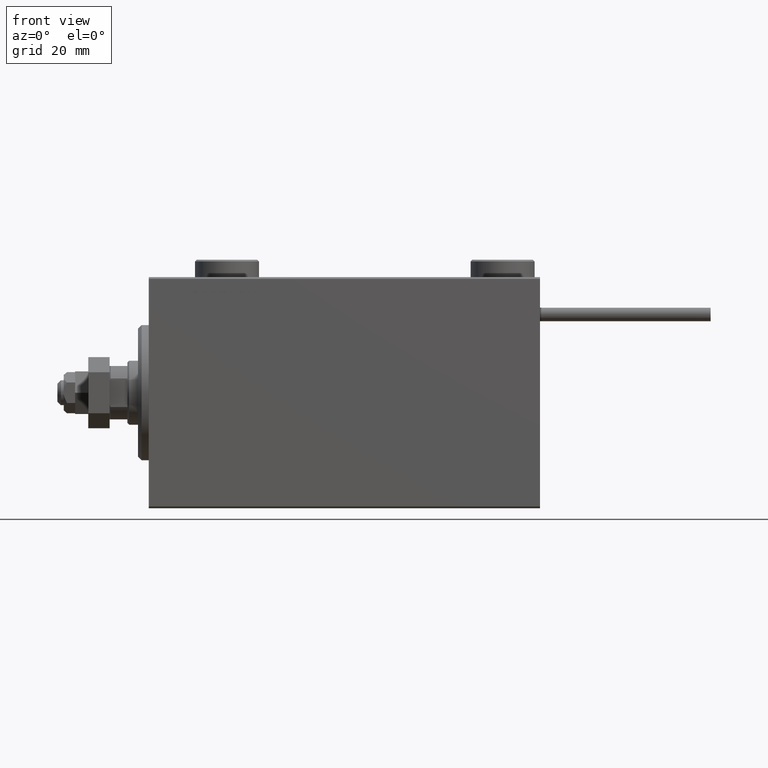
[diagram: clean part render]
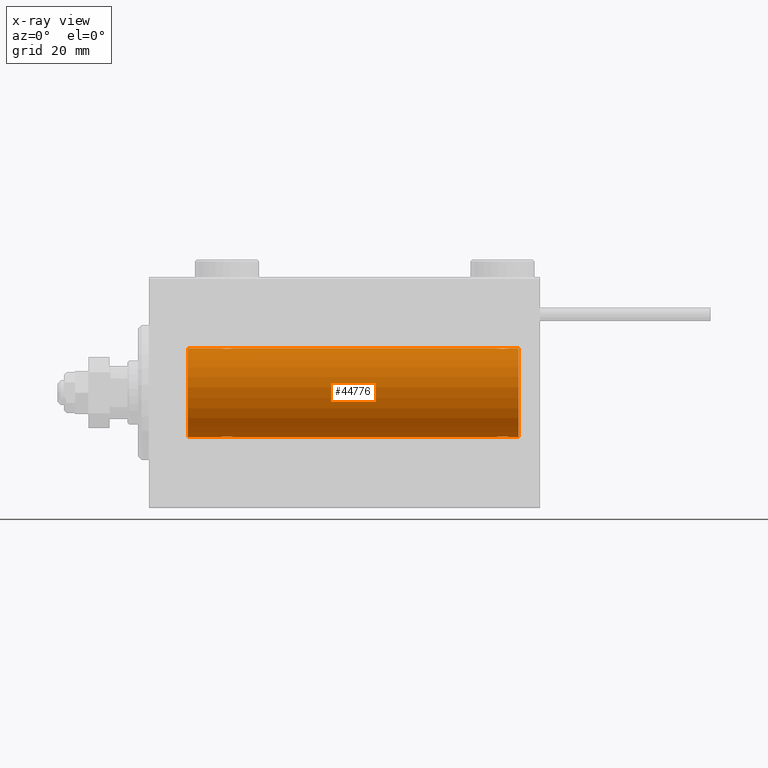
[diagram: x-ray — body ghosted, one internal face saturated and labeled with its STEP entity id]
A machine part, front view, then the same camera in x-ray: the body is ghosted and one INTERNAL B-rep face — a face not visible from any outside direction — is saturated and labeled: STEP entity #44776.
In plain terms, the highlighted cylindrical surface (partial cylindrical patch) has radius 12.5 mm, axis along (-1, -0, -0).
Its self-contained STEP definition (entity closure, byte-faithful):
#243 = CARTESIAN_POINT ( 'NONE',  ( 22.88874725797039389, -1.796480516834687569, -12.37033750336835070 ) ) ;
#321 = CARTESIAN_POINT ( 'NONE',  ( 97.55334320101623291, -0.5275951738695811022, -12.49118442338578738 ) ) ;
#847 = CARTESIAN_POINT ( 'NONE',  ( 101.4474434057233196, -0.5247436444070316952, -12.49130933415156974 ) ) ;
#2252 = CARTESIAN_POINT ( 'NONE',  ( 19.99999999999999645, -7.265724481447607133E-23, 12.50000000000000000 ) ) ;
#2272 = CARTESIAN_POINT ( 'NONE',  ( 98.85356103036407660, -1.897190184049181161, 12.35529285772521213 ) ) ;
#2606 = DIRECTION ( 'NONE',  ( -1.000000000000000000, -0.000000000000000000, -0.000000000000000000 ) ) ;
#3321 = CARTESIAN_POINT ( 'NONE',  ( 101.0974477469102197, -1.231226695485355904, 12.44059298055988094 ) ) ;
#3878 = B_SPLINE_CURVE_WITH_KNOTS ( 'NONE', 3,
 ( #25034, #36732, #847, #15999, #45224, #33020, #28224, #29285, #28758, #36192, #4822, #40704, #21053, #44435, #52406, #16803, #48957, #45481, #20795, #37252, #24231, #49488, #28489, #32755, #8028, #321, #40446, #41239 ),
 .UNSPECIFIED., .F., .F.,
 ( 4, 2, 2, 2, 2, 2, 2, 2, 2, 2, 2, 2, 2, 4 ),
 ( 0.006262980370572163689, 0.007045658964677352538, 0.007436998261729955637, 0.007828337558782557867, 0.008219676855835160098, 0.008611016152887764064, 0.009002355449940366294, 0.009393694746992968525, 0.009785034044045572491, 0.01017637334109817472, 0.01056771263815077869, 0.01095905193520338092, 0.01174173052930858538, 0.01252440912341379158 ),
 .UNSPECIFIED. ) ;
#3954 = CARTESIAN_POINT ( 'NONE',  ( 20.00000000000000000, -0.2646816682749824068, -12.50000000000000355 ) ) ;
#4373 = CARTESIAN_POINT ( 'NONE',  ( 99.63089967323423934, -2.000082296475560906, 12.33894933996983490 ) ) ;
#4822 = CARTESIAN_POINT ( 'NONE',  ( 100.3887472579704365, -1.796480516834683128, -12.37033750336835602 ) ) ;
#4859 = VECTOR ( 'NONE', #38049, 1000.000000000000000 ) ;
#5201 = CARTESIAN_POINT ( 'NONE',  ( 20.05255659427669812, -0.5247436444070346928, 12.49130933415156619 ) ) ;
#5263 = CIRCLE ( 'NONE', #34098, 12.50000000000000000 ) ;
#5459 = CARTESIAN_POINT ( 'NONE',  ( 20.20214393531741948, -0.8858253204748031129, 12.46915613403961132 ) ) ;
#5545 = DIRECTION ( 'NONE',  ( 0.000000000000000000, 0.000000000000000000, 1.000000000000000000 ) ) ;
#5712 = CARTESIAN_POINT ( 'NONE',  ( 22.88616153879433313, -1.797736511708062146, 12.37015393445320655 ) ) ;
#6257 = CARTESIAN_POINT ( 'NONE',  ( 97.50000000000000000, -7.266434456262306043E-23, 12.50000000000000000 ) ) ;
#6728 = ORIENTED_EDGE ( 'NONE', *, *, #25070, .T. ) ;
#7044 = CARTESIAN_POINT ( 'NONE',  ( 104.0000000000000000, 0.000000000000000000, 12.50000000000000000 ) ) ;
#7442 = DIRECTION ( 'NONE',  ( -1.000000000000000000, -0.000000000000000000, -0.000000000000000000 ) ) ;
#7759 = DIRECTION ( 'NONE',  ( -1.000000000000000000, 0.000000000000000000, 0.000000000000000000 ) ) ;
#7952 = CARTESIAN_POINT ( 'NONE',  ( 19.99999999999999645, -3.210500737764230410E-15, -12.50000000000000000 ) ) ;
#8020 = LINE ( 'NONE', #7044, #21596 ) ;
#8028 = CARTESIAN_POINT ( 'NONE',  ( 97.75337863379108683, -1.008535157355855194, -12.46157701909767823 ) ) ;
#8109 = CARTESIAN_POINT ( 'NONE',  ( 99.36659749548705634, -1.999916920503812534, 12.33897614545467647 ) ) ;
#8377 = CARTESIAN_POINT ( 'NONE',  ( 100.0169372669762708, -1.936441098420705220, 12.34912369794528786 ) ) ;
#8384 = VERTEX_POINT ( 'NONE', #23718 ) ;
#8647 = CARTESIAN_POINT ( 'NONE',  ( 101.5000000000000000, 3.163483401492493339E-15, 12.50000000000000000 ) ) ;
#8870 = CARTESIAN_POINT ( 'NONE',  ( 104.0000000000000000, 0.000000000000000000, 12.50000000000000000 ) ) ;
#10015 = CARTESIAN_POINT ( 'NONE',  ( 10.99999999999999645, 0.000000000000000000, 12.50000000000000000 ) ) ;
#10140 = LINE ( 'NONE', #49513, #4859 ) ;
#10228 = EDGE_CURVE ( 'NONE', #25231, #48870, #35056, .T. ) ;
#11623 = VERTEX_POINT ( 'NONE', #44058 ) ;
#11671 = CARTESIAN_POINT ( 'NONE',  ( 20.25337863379106551, -1.008535157355840761, -12.46157701909767646 ) ) ;
#11928 = CARTESIAN_POINT ( 'NONE',  ( 21.35574721202270254, -1.897913903092047327, -12.35518060345725289 ) ) ;
#11960 = AXIS2_PLACEMENT_3D ( 'NONE', #20519, #7759, #27682 ) ;
#12467 = CARTESIAN_POINT ( 'NONE',  ( 23.79785606468258052, -0.8858253204748001153, -12.46915613403960954 ) ) ;
#12508 = EDGE_CURVE ( 'NONE', #22998, #16297, #10140, .T. ) ;
#12551 = ORIENTED_EDGE ( 'NONE', *, *, #10228, .T. ) ;
#12988 = ORIENTED_EDGE ( 'NONE', *, *, #16783, .F. ) ;
#13276 = FACE_OUTER_BOUND ( 'NONE', #48286, .T. ) ;
#13325 = CARTESIAN_POINT ( 'NONE',  ( 97.50000000000000000, -1.163384304276021718E-14, -12.50000000000000000 ) ) ;
#13439 = CARTESIAN_POINT ( 'NONE',  ( 21.48038527642126638, -1.935716533151644381, 12.34923763528285079 ) ) ;
#13654 = VERTEX_POINT ( 'NONE', #30361 ) ;
#13698 = CARTESIAN_POINT ( 'NONE',  ( 22.13089967323422869, -2.000082296475567567, 12.33894933996982957 ) ) ;
#13836 = DIRECTION ( 'NONE',  ( -1.000000000000000000, 0.000000000000000000, 0.000000000000000000 ) ) ;
#13956 = CARTESIAN_POINT ( 'NONE',  ( 23.94665679898380972, -0.5275951738695614512, 12.49118442338578738 ) ) ;
#14213 = CARTESIAN_POINT ( 'NONE',  ( 20.77972850102579727, -1.589951752150277509, 12.39868561261689273 ) ) ;
#14234 = CARTESIAN_POINT ( 'NONE',  ( 97.49999999999995737, -0.2612140938986747818, 12.50000000000000000 ) ) ;
#15034 = CARTESIAN_POINT ( 'NONE',  ( 98.27972850102580082, -1.589951752150278397, 12.39868561261688740 ) ) ;
#15626 = EDGE_CURVE ( 'NONE', #13654, #8384, #50320, .T. ) ;
#15920 = CARTESIAN_POINT ( 'NONE',  ( 23.58981090228289546, -1.220538259806346559, -12.44075068685997287 ) ) ;
#15982 = EDGE_CURVE ( 'NONE', #37636, #8384, #16207, .T. ) ;
#15999 = CARTESIAN_POINT ( 'NONE',  ( 101.2978560646825770, -0.8858253204747995602, -12.46915613403961132 ) ) ;
#16207 = LINE ( 'NONE', #24429, #24428 ) ;
#16297 = VERTEX_POINT ( 'NONE', #43516 ) ;
#16466 = CARTESIAN_POINT ( 'NONE',  ( 24.00000000000000000, 1.530808426277417854E-15, -12.50000000000000000 ) ) ;
#16618 = CARTESIAN_POINT ( 'NONE',  ( 101.5000000000000000, -0.2646816682749794647, 12.50000000000000000 ) ) ;
#16783 = EDGE_CURVE ( 'NONE', #13654, #48169, #45769, .T. ) ;
#16787 = ORIENTED_EDGE ( 'NONE', *, *, #50962, .F. ) ;
#16803 = CARTESIAN_POINT ( 'NONE',  ( 99.36910032676577487, -2.000082296475571120, -12.33894933996983134 ) ) ;
#17663 = EDGE_CURVE ( 'NONE', #11623, #30540, #34607, .T. ) ;
#17666 = CARTESIAN_POINT ( 'NONE',  ( 24.00000000000000000, 1.530808426277417854E-15, -12.50000000000000000 ) ) ;
#17951 = CARTESIAN_POINT ( 'NONE',  ( 23.32116712851443552, -1.507135374967696784, 12.40915432986586708 ) ) ;
#18294 = CYLINDRICAL_SURFACE ( 'NONE', #28284, 12.50000000000000000 ) ;
#18477 = CARTESIAN_POINT ( 'NONE',  ( 23.21854119541938388, -1.591305132013877133, 12.39851226212236313 ) ) ;
#19328 = ORIENTED_EDGE ( 'NONE', *, *, #15982, .F. ) ;
#19547 = CARTESIAN_POINT ( 'NONE',  ( 98.98038527642125928, -1.935716533151639718, 12.34923763528284368 ) ) ;
#19909 = CARTESIAN_POINT ( 'NONE',  ( 22.26391373102435622, -1.986793270638195663, -12.34112317291864791 ) ) ;
#20519 = CARTESIAN_POINT ( 'NONE',  ( 104.0000000000000000, 0.000000000000000000, 0.000000000000000000 ) ) ;
#20650 = VERTEX_POINT ( 'NONE', #43088 ) ;
#20795 = CARTESIAN_POINT ( 'NONE',  ( 98.85574721202273452, -1.897913903092053545, -12.35518060345725466 ) ) ;
#21053 = CARTESIAN_POINT ( 'NONE',  ( 100.0196147235787407, -1.935716533151644381, -12.34923763528284901 ) ) ;
#21429 = CARTESIAN_POINT ( 'NONE',  ( 21.35356103036408371, -1.897190184049189821, 12.35529285772521568 ) ) ;
#21596 = VECTOR ( 'NONE', #23250, 1000.000000000000000 ) ;
#21680 = CARTESIAN_POINT ( 'NONE',  ( 21.73608626897565088, -1.986793270638199438, 12.34112317291865146 ) ) ;
#21938 = CARTESIAN_POINT ( 'NONE',  ( 23.59744774691022684, -1.231226695485365230, 12.44059298055988450 ) ) ;
#22193 = CARTESIAN_POINT ( 'NONE',  ( 23.00099792098508900, -1.736403706023271099, 12.37902502246767966 ) ) ;
#22479 = CARTESIAN_POINT ( 'NONE',  ( 97.99277848532007340, -1.321088093821075393, 12.43033959299025426 ) ) ;
#22998 = VERTEX_POINT ( 'NONE', #35661 ) ;
#23250 = DIRECTION ( 'NONE',  ( -1.000000000000000000, -0.000000000000000000, -0.000000000000000000 ) ) ;
#23276 = CARTESIAN_POINT ( 'NONE',  ( 97.91018909771709389, -1.220538259806350778, 12.44075068685996754 ) ) ;
#23369 = CARTESIAN_POINT ( 'NONE',  ( 22.51961472357874072, -1.935716533151642160, -12.34923763528285257 ) ) ;
#23627 = CARTESIAN_POINT ( 'NONE',  ( 24.00000000000000711, -0.2612140938986741157, -12.50000000000000533 ) ) ;
#23718 = CARTESIAN_POINT ( 'NONE',  ( 24.00000000000000000, 4.282144263989374341E-15, 12.50000000000000000 ) ) ;
#23787 = CARTESIAN_POINT ( 'NONE',  ( 99.23608626897566864, -1.986793270638193443, 12.34112317291865146 ) ) ;
#24231 = CARTESIAN_POINT ( 'NONE',  ( 98.49900207901492877, -1.736403706023275095, -12.37902502246767789 ) ) ;
#24313 = CARTESIAN_POINT ( 'NONE',  ( 101.2466213662089274, -1.008535157355832990, 12.46157701909767823 ) ) ;
#24363 = ORIENTED_EDGE ( 'NONE', *, *, #12508, .T. ) ;
#24418 = CARTESIAN_POINT ( 'NONE',  ( 21.86910032676576421, -2.000082296475566679, -12.33894933996983490 ) ) ;
#24428 = VECTOR ( 'NONE', #7442, 1000.000000000000000 ) ;
#24429 = CARTESIAN_POINT ( 'NONE',  ( 104.0000000000000000, 0.000000000000000000, 12.50000000000000000 ) ) ;
#24580 = CARTESIAN_POINT ( 'NONE',  ( 100.5009979209850854, -1.736403706023266658, 12.37902502246767789 ) ) ;
#24916 = CARTESIAN_POINT ( 'NONE',  ( 10.99999999999999645, 1.530808498934191127E-15, -12.50000000000000000 ) ) ;
#25034 = CARTESIAN_POINT ( 'NONE',  ( 101.5000000000000000, 1.530808426269529245E-15, -12.50000000000000000 ) ) ;
#25067 = DIRECTION ( 'NONE',  ( -1.000000000000000000, -0.000000000000000000, -0.000000000000000000 ) ) ;
#25070 = EDGE_CURVE ( 'NONE', #16297, #25231, #3878, .T. ) ;
#25182 = EDGE_CURVE ( 'NONE', #30540, #48169, #5263, .T. ) ;
#25231 = VERTEX_POINT ( 'NONE', #13325 ) ;
#25918 = CARTESIAN_POINT ( 'NONE',  ( 22.51693726697628506, -1.936441098420708773, 12.34912369794529141 ) ) ;
#26176 = CARTESIAN_POINT ( 'NONE',  ( 20.41018909771710810, -1.220538259806349890, 12.44075068685997287 ) ) ;
#26463 = CARTESIAN_POINT ( 'NONE',  ( 97.76436921980425154, -1.002396200863564291, 12.46022444231050663 ) ) ;
#26716 = CARTESIAN_POINT ( 'NONE',  ( 97.70214393531739461, -0.8858253204748003373, 12.46915613403960421 ) ) ;
#27532 = B_SPLINE_CURVE_WITH_KNOTS ( 'NONE', 3,
 ( #16466, #23627, #44876, #12467, #39838, #15920, #35855, #40103, #27882, #31617, #243, #48876, #23369, #19909, #31872, #24418, #35601, #32136, #11928, #28146, #48079, #52071, #27608, #44356, #11671, #39585, #3954, #7952 ),
 .UNSPECIFIED., .F., .F.,
 ( 4, 2, 2, 2, 2, 2, 2, 2, 2, 2, 2, 2, 2, 4 ),
 ( 0.006262980370572175833, 0.007045658964677372488, 0.007436998261729972984, 0.007828337558782573480, 0.008219676855835173976, 0.008611016152887774472, 0.009002355449940376703, 0.009393694746992975464, 0.009785034044045577695, 0.01017637334109817646, 0.01056771263815077869, 0.01095905193520337745, 0.01174173052930858711, 0.01252440912341379504 ),
 .UNSPECIFIED. ) ;
#27608 = CARTESIAN_POINT ( 'NONE',  ( 20.67883287148555382, -1.507135374967699670, -12.40915432986587064 ) ) ;
#27682 = DIRECTION ( 'NONE',  ( 0.000000000000000000, 0.000000000000000000, 1.000000000000000000 ) ) ;
#27882 = CARTESIAN_POINT ( 'NONE',  ( 23.22027149897420273, -1.589951752150273068, -12.39868561261689273 ) ) ;
#28146 = CARTESIAN_POINT ( 'NONE',  ( 21.11383846120566332, -1.797736511708062368, -12.37015393445320122 ) ) ;
#28224 = CARTESIAN_POINT ( 'NONE',  ( 101.0072215146799550, -1.321088093821078946, -12.43033959299025248 ) ) ;
#28284 = AXIS2_PLACEMENT_3D ( 'NONE', #42479, #2606, #5545 ) ;
#28489 = CARTESIAN_POINT ( 'NONE',  ( 98.17883287148556803, -1.507135374967708552, -12.40915432986586708 ) ) ;
#28529 = B_SPLINE_CURVE_WITH_KNOTS ( 'NONE', 3,
 ( #6257, #14234, #43466, #26716, #26463, #23276, #22479, #51437, #15034, #39482, #38681, #2272, #19547, #23787, #8109, #4373, #44772, #8377, #28835, #44246, #24580, #52224, #44511, #3321, #24313, #36280, #16618, #8647 ),
 .UNSPECIFIED., .F., .F.,
 ( 4, 2, 2, 2, 2, 2, 2, 2, 2, 2, 2, 2, 2, 4 ),
 ( 0.006262980370572151546, 0.007045658964677331722, 0.007436998261729929616, 0.007828337558782528377, 0.008219676855835125404, 0.008611016152887724165, 0.009002355449940321191, 0.009393694746992919953, 0.009785034044045518714, 0.01017637334109811748, 0.01056771263815071624, 0.01095905193520331326, 0.01174173052930853854, 0.01252440912341376555 ),
 .UNSPECIFIED. ) ;
#28758 = CARTESIAN_POINT ( 'NONE',  ( 100.7202714989742560, -1.589951752150277731, -12.39868561261689273 ) ) ;
#28835 = CARTESIAN_POINT ( 'NONE',  ( 100.1442527879772939, -1.897913903092038890, 12.35518060345724933 ) ) ;
#28852 = CARTESIAN_POINT ( 'NONE',  ( 104.0000000000000000, 0.000000000000000000, 12.50000000000000000 ) ) ;
#29285 = CARTESIAN_POINT ( 'NONE',  ( 100.8229994310773350, -1.505544071529935968, -12.40934942683854203 ) ) ;
#29805 = CARTESIAN_POINT ( 'NONE',  ( 10.99999999999999645, 0.000000000000000000, 0.000000000000000000 ) ) ;
#29930 = CARTESIAN_POINT ( 'NONE',  ( 22.26093497285606659, -1.987194304939079004, 12.34105826212746138 ) ) ;
#30181 = CARTESIAN_POINT ( 'NONE',  ( 24.00000000000002487, -0.2646816682749817407, 12.50000000000000178 ) ) ;
#30361 = CARTESIAN_POINT ( 'NONE',  ( 19.99999999999999645, -7.265724481447607133E-23, 12.50000000000000000 ) ) ;
#30540 = VERTEX_POINT ( 'NONE', #24916 ) ;
#31617 = CARTESIAN_POINT ( 'NONE',  ( 23.00345574076692046, -1.734959850168409146, -12.37922718965050706 ) ) ;
#31872 = CARTESIAN_POINT ( 'NONE',  ( 22.13340250451295077, -1.999916920503817197, -12.33897614545467469 ) ) ;
#31955 = CARTESIAN_POINT ( 'NONE',  ( 97.50000000000000000, -7.266434456262306043E-23, 12.50000000000000000 ) ) ;
#32107 = VECTOR ( 'NONE', #50807, 1000.000000000000000 ) ;
#32136 = CARTESIAN_POINT ( 'NONE',  ( 21.48306273302371494, -1.936441098420706997, -12.34912369794528431 ) ) ;
#32755 = CARTESIAN_POINT ( 'NONE',  ( 97.90255225308979448, -1.231226695485378553, -12.44059298055988450 ) ) ;
#33020 = CARTESIAN_POINT ( 'NONE',  ( 101.0898109022829061, -1.220538259806346115, -12.44075068685996932 ) ) ;
#33903 = CARTESIAN_POINT ( 'NONE',  ( 21.86659749548703857, -1.999916920503819417, 12.33897614545467114 ) ) ;
#34098 = AXIS2_PLACEMENT_3D ( 'NONE', #29805, #13836, #38025 ) ;
#34607 = LINE ( 'NONE', #38849, #32107 ) ;
#35056 = LINE ( 'NONE', #43548, #39615 ) ;
#35363 = EDGE_CURVE ( 'NONE', #37636, #20650, #28529, .T. ) ;
#35601 = CARTESIAN_POINT ( 'NONE',  ( 21.73906502714393341, -1.987194304939077671, -12.34105826212746315 ) ) ;
#35661 = CARTESIAN_POINT ( 'NONE',  ( 104.0000000000000000, 1.530808498934191127E-15, -12.50000000000000000 ) ) ;
#35855 = CARTESIAN_POINT ( 'NONE',  ( 23.50722151467993726, -1.321088093821077392, -12.43033959299025248 ) ) ;
#36192 = CARTESIAN_POINT ( 'NONE',  ( 100.5034557407669098, -1.734959850168412254, -12.37922718965050173 ) ) ;
#36280 = CARTESIAN_POINT ( 'NONE',  ( 101.4466567989838097, -0.5275951738695604520, 12.49118442338578383 ) ) ;
#36732 = CARTESIAN_POINT ( 'NONE',  ( 101.5000000000000000, -0.2612140938986733385, -12.49999999999999822 ) ) ;
#36853 = ORIENTED_EDGE ( 'NONE', *, *, #35363, .T. ) ;
#36921 = ORIENTED_EDGE ( 'NONE', *, *, #25182, .T. ) ;
#37252 = CARTESIAN_POINT ( 'NONE',  ( 98.61383846120563135, -1.797736511708068363, -12.37015393445320299 ) ) ;
#37636 = VERTEX_POINT ( 'NONE', #31955 ) ;
#37891 = CARTESIAN_POINT ( 'NONE',  ( 20.26436921980423023, -1.002396200863561626, 12.46022444231050663 ) ) ;
#38025 = DIRECTION ( 'NONE',  ( 0.000000000000000000, 0.000000000000000000, 1.000000000000000000 ) ) ;
#38049 = DIRECTION ( 'NONE',  ( -1.000000000000000000, -0.000000000000000000, -0.000000000000000000 ) ) ;
#38146 = CARTESIAN_POINT ( 'NONE',  ( 23.74662136620892028, -1.008535157355836764, 12.46157701909767646 ) ) ;
#38681 = CARTESIAN_POINT ( 'NONE',  ( 98.61125274202963453, -1.796480516834681573, 12.37033750336835958 ) ) ;
#38849 = CARTESIAN_POINT ( 'NONE',  ( 104.0000000000000000, 1.530808498934191127E-15, -12.50000000000000000 ) ) ;
#39482 = CARTESIAN_POINT ( 'NONE',  ( 98.49654425923311862, -1.734959850168412254, 12.37922718965051061 ) ) ;
#39585 = CARTESIAN_POINT ( 'NONE',  ( 20.05334320101619738, -0.5275951738695665583, -12.49118442338578561 ) ) ;
#39615 = VECTOR ( 'NONE', #47000, 1000.000000000000000 ) ;
#39652 = EDGE_CURVE ( 'NONE', #22998, #48461, #47591, .T. ) ;
#39838 = CARTESIAN_POINT ( 'NONE',  ( 23.73563078019576977, -1.002396200863558740, -12.46022444231050663 ) ) ;
#40103 = CARTESIAN_POINT ( 'NONE',  ( 23.32299943107733498, -1.505544071529933747, -12.40934942683853848 ) ) ;
#40446 = CARTESIAN_POINT ( 'NONE',  ( 97.49999999999995737, -0.2646816682749928429, -12.49999999999999645 ) ) ;
#40704 = CARTESIAN_POINT ( 'NONE',  ( 100.1464389696359234, -1.897190184049184936, -12.35529285772521391 ) ) ;
#41239 = CARTESIAN_POINT ( 'NONE',  ( 97.50000000000000000, -1.163384304276021718E-14, -12.50000000000000000 ) ) ;
#41622 = CARTESIAN_POINT ( 'NONE',  ( 20.00000000000000000, -0.2612140938986761141, 12.50000000000000711 ) ) ;
#42136 = CARTESIAN_POINT ( 'NONE',  ( 20.99654425923307954, -1.734959850168412920, 12.37922718965050528 ) ) ;
#42479 = CARTESIAN_POINT ( 'NONE',  ( 104.0000000000000000, 0.000000000000000000, 0.000000000000000000 ) ) ;
#43088 = CARTESIAN_POINT ( 'NONE',  ( 101.5000000000000000, 3.163483401492493339E-15, 12.50000000000000000 ) ) ;
#43466 = CARTESIAN_POINT ( 'NONE',  ( 97.55255659427668036, -0.5247436444070334716, 12.49130933415156441 ) ) ;
#43516 = CARTESIAN_POINT ( 'NONE',  ( 101.5000000000000000, 1.530808426269529245E-15, -12.50000000000000000 ) ) ;
#43548 = CARTESIAN_POINT ( 'NONE',  ( 104.0000000000000000, 1.530808498934191127E-15, -12.50000000000000000 ) ) ;
#43922 = VECTOR ( 'NONE', #25067, 1000.000000000000000 ) ;
#44058 = CARTESIAN_POINT ( 'NONE',  ( 19.99999999999999645, -3.210500737764230410E-15, -12.50000000000000000 ) ) ;
#44242 = ORIENTED_EDGE ( 'NONE', *, *, #50471, .T. ) ;
#44246 = CARTESIAN_POINT ( 'NONE',  ( 100.3861615387943544, -1.797736511708053264, 12.37015393445321010 ) ) ;
#44356 = CARTESIAN_POINT ( 'NONE',  ( 20.40255225308977671, -1.231226695485369449, -12.44059298055988627 ) ) ;
#44435 = CARTESIAN_POINT ( 'NONE',  ( 99.76391373102434557, -1.986793270638199438, -12.34112317291864969 ) ) ;
#44511 = CARTESIAN_POINT ( 'NONE',  ( 100.8211671285144462, -1.507135374967687458, 12.40915432986586886 ) ) ;
#44772 = CARTESIAN_POINT ( 'NONE',  ( 99.76093497285606304, -1.987194304939074341, 12.34105826212746138 ) ) ;
#44776 = ADVANCED_FACE ( 'NONE', ( #13276 ), #18294, .F. ) ;
#44876 = CARTESIAN_POINT ( 'NONE',  ( 23.94744340572329833, -0.5247436444070322503, -12.49130933415156619 ) ) ;
#45224 = CARTESIAN_POINT ( 'NONE',  ( 101.2356307801958053, -1.002396200863557185, -12.46022444231050841 ) ) ;
#45481 = CARTESIAN_POINT ( 'NONE',  ( 98.98306273302375757, -1.936441098420713214, -12.34912369794529141 ) ) ;
#45484 = ORIENTED_EDGE ( 'NONE', *, *, #15626, .T. ) ;
#45769 = LINE ( 'NONE', #8870, #43922 ) ;
#45854 = CARTESIAN_POINT ( 'NONE',  ( 20.67700056892266858, -1.505544071529937522, 12.40934942683853848 ) ) ;
#46118 = CARTESIAN_POINT ( 'NONE',  ( 22.64425278797730456, -1.897913903092048438, 12.35518060345725466 ) ) ;
#46367 = CARTESIAN_POINT ( 'NONE',  ( 24.00000000000000000, 4.282144263989374341E-15, 12.50000000000000000 ) ) ;
#46631 = CARTESIAN_POINT ( 'NONE',  ( 21.11125274202959901, -1.796480516834689345, 12.37033750336835602 ) ) ;
#47000 = DIRECTION ( 'NONE',  ( -1.000000000000000000, -0.000000000000000000, -0.000000000000000000 ) ) ;
#47591 = CIRCLE ( 'NONE', #11960, 12.50000000000000000 ) ;
#48079 = CARTESIAN_POINT ( 'NONE',  ( 20.99900207901491811, -1.736403706023270654, -12.37902502246767966 ) ) ;
#48169 = VERTEX_POINT ( 'NONE', #10015 ) ;
#48286 = EDGE_LOOP ( 'NONE', ( #51178, #24363, #6728, #12551, #44242, #50541, #36921, #12988, #45484, #19328, #36853, #16787 ) ) ;
#48461 = VERTEX_POINT ( 'NONE', #28852 ) ;
#48870 = VERTEX_POINT ( 'NONE', #17666 ) ;
#48876 = CARTESIAN_POINT ( 'NONE',  ( 22.64643896963591629, -1.897190184049188044, -12.35529285772521924 ) ) ;
#48957 = CARTESIAN_POINT ( 'NONE',  ( 99.23906502714392275, -1.987194304939082556, -12.34105826212746138 ) ) ;
#49488 = CARTESIAN_POINT ( 'NONE',  ( 98.28145880458062322, -1.591305132013882462, -12.39851226212236135 ) ) ;
#49513 = CARTESIAN_POINT ( 'NONE',  ( 104.0000000000000000, 1.530808498934191127E-15, -12.50000000000000000 ) ) ;
#49865 = CARTESIAN_POINT ( 'NONE',  ( 20.49277848532006985, -1.321088093821080722, 12.43033959299025426 ) ) ;
#50320 = B_SPLINE_CURVE_WITH_KNOTS ( 'NONE', 3,
 ( #2252, #41622, #5201, #5459, #37891, #26176, #49865, #45854, #14213, #42136, #46631, #21429, #13439, #21680, #33903, #13698, #29930, #25918, #46118, #5712, #22193, #18477, #17951, #21938, #38146, #13956, #30181, #46367 ),
 .UNSPECIFIED., .F., .F.,
 ( 4, 2, 2, 2, 2, 2, 2, 2, 2, 2, 2, 2, 2, 4 ),
 ( 0.006262980370572207058, 0.007045658964677413254, 0.007436998261730018087, 0.007828337558782622052, 0.008219676855835227752, 0.008611016152887833452, 0.009002355449940437418, 0.009393694746993043118, 0.009785034044045648818, 0.01017637334109825278, 0.01056771263815085848, 0.01095905193520346418, 0.01174173052930866518, 0.01252440912341386790 ),
 .UNSPECIFIED. ) ;
#50471 = EDGE_CURVE ( 'NONE', #48870, #11623, #27532, .T. ) ;
#50541 = ORIENTED_EDGE ( 'NONE', *, *, #17663, .T. ) ;
#50807 = DIRECTION ( 'NONE',  ( -1.000000000000000000, -0.000000000000000000, -0.000000000000000000 ) ) ;
#50962 = EDGE_CURVE ( 'NONE', #48461, #20650, #8020, .T. ) ;
#51178 = ORIENTED_EDGE ( 'NONE', *, *, #39652, .F. ) ;
#51437 = CARTESIAN_POINT ( 'NONE',  ( 98.17700056892269345, -1.505544071529930639, 12.40934942683854025 ) ) ;
#52071 = CARTESIAN_POINT ( 'NONE',  ( 20.78145880458060901, -1.591305132013878021, -12.39851226212236313 ) ) ;
#52224 = CARTESIAN_POINT ( 'NONE',  ( 100.7185411954193626, -1.591305132013873580, 12.39851226212236135 ) ) ;
#52406 = CARTESIAN_POINT ( 'NONE',  ( 99.63340250451298630, -1.999916920503819862, -12.33897614545467647 ) ) ;